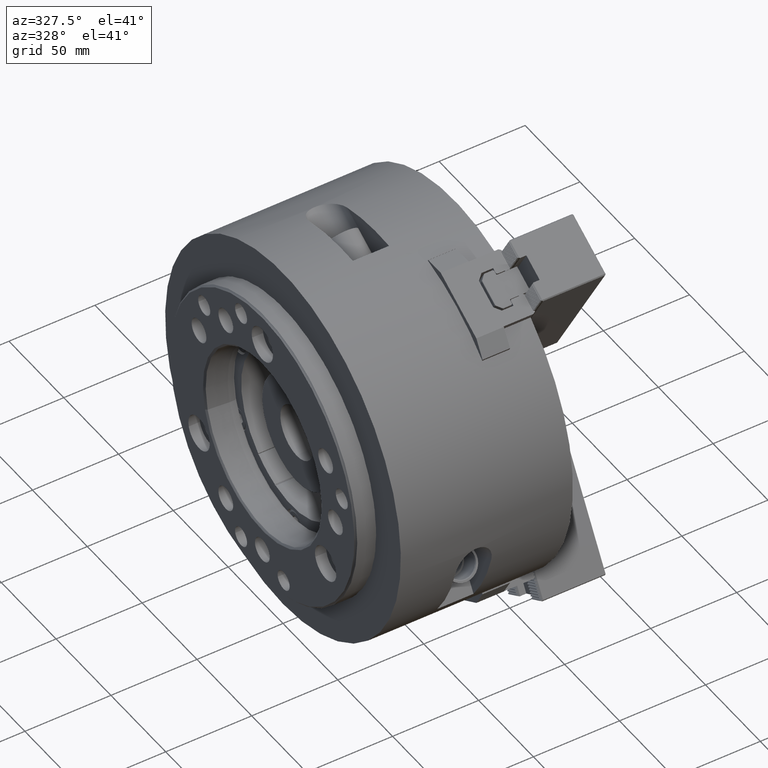
[diagram: clean part render]
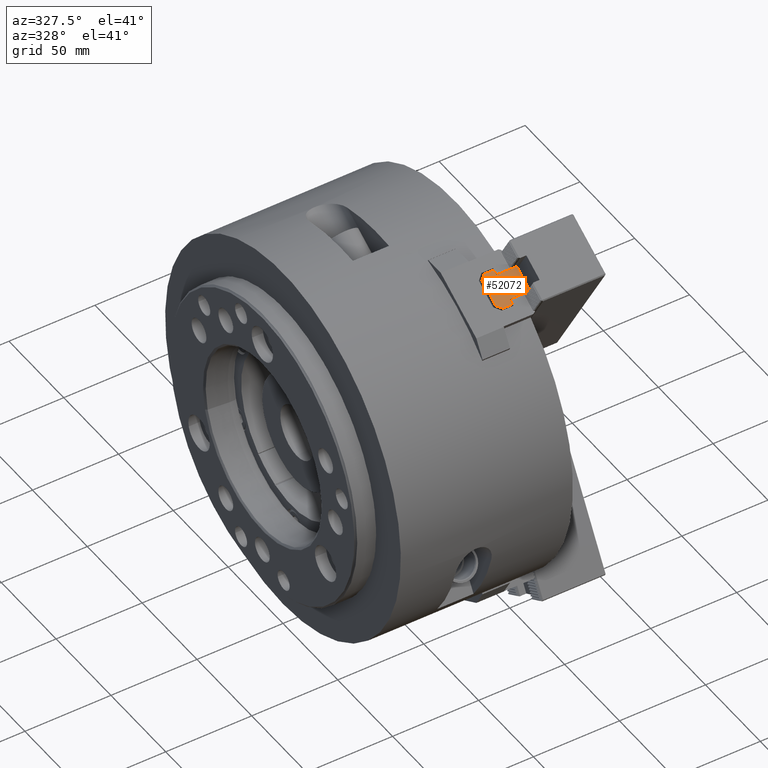
[diagram: same view with one face highlighted and labeled with its STEP entity id]
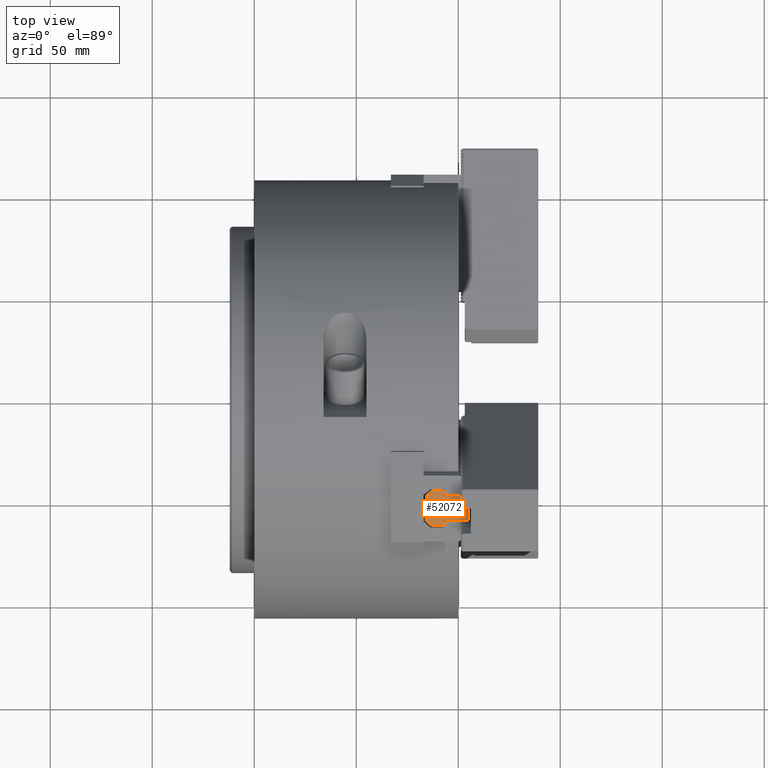
[diagram: same view with one face highlighted and labeled with its STEP entity id]
A machine part, auxiliary view. The second image highlights one B-rep face of the part: STEP entity #52072.
A second angle (top view) of the same face is appended — the face is thin or edge-on in the first view.
In plain terms, the highlighted planar face has unit normal (0, 0.5, -0.866).
Its self-contained STEP definition (entity closure, byte-faithful):
#2679=LINE('',#78597,#9179);
#2683=LINE('',#78609,#9183);
#2686=LINE('',#78616,#9186);
#2695=LINE('',#78633,#9195);
#2700=LINE('',#78647,#9200);
#2701=LINE('',#78648,#9201);
#2702=LINE('',#78650,#9202);
#2703=LINE('',#78652,#9203);
#2704=LINE('',#78654,#9204);
#2705=LINE('',#78656,#9205);
#2706=LINE('',#78660,#9206);
#2707=LINE('',#78662,#9207);
#9179=VECTOR('',#64268,1000.);
#9183=VECTOR('',#64280,1000.);
#9186=VECTOR('',#64285,1000.);
#9195=VECTOR('',#64298,1000.);
#9200=VECTOR('',#64311,1000.);
#9201=VECTOR('',#64312,1000.);
#9202=VECTOR('',#64313,1000.);
#9203=VECTOR('',#64314,1000.);
#9204=VECTOR('',#64315,1000.);
#9205=VECTOR('',#64316,1000.);
#9206=VECTOR('',#64319,1000.);
#9207=VECTOR('',#64320,1000.);
#14138=PLANE('',#55950);
#22349=ORIENTED_EDGE('',*,*,#33848,.T.);
#22350=ORIENTED_EDGE('',*,*,#33864,.T.);
#22351=ORIENTED_EDGE('',*,*,#33857,.T.);
#22352=ORIENTED_EDGE('',*,*,#33865,.T.);
#22353=ORIENTED_EDGE('',*,*,#33866,.F.);
#22354=ORIENTED_EDGE('',*,*,#33867,.F.);
#22355=ORIENTED_EDGE('',*,*,#33868,.F.);
#22356=ORIENTED_EDGE('',*,*,#33869,.F.);
#22357=ORIENTED_EDGE('',*,*,#33870,.F.);
#22358=ORIENTED_EDGE('',*,*,#33871,.F.);
#22359=ORIENTED_EDGE('',*,*,#33872,.T.);
#22360=ORIENTED_EDGE('',*,*,#33839,.T.);
#22361=ORIENTED_EDGE('',*,*,#33842,.T.);
#22362=ORIENTED_EDGE('',*,*,#33845,.T.);
#33839=EDGE_CURVE('',#44415,#44418,#2679,.T.);
#33842=EDGE_CURVE('',#44418,#44420,#38600,.T.);
#33845=EDGE_CURVE('',#44420,#44422,#2683,.T.);
#33848=EDGE_CURVE('',#44422,#44425,#2686,.T.);
#33857=EDGE_CURVE('',#44432,#44431,#2695,.T.);
#33864=EDGE_CURVE('',#44425,#44432,#2700,.T.);
#33865=EDGE_CURVE('',#44431,#44437,#2701,.T.);
#33866=EDGE_CURVE('',#44438,#44437,#2702,.T.);
#33867=EDGE_CURVE('',#44439,#44438,#2703,.T.);
#33868=EDGE_CURVE('',#44440,#44439,#2704,.T.);
#33869=EDGE_CURVE('',#44441,#44440,#2705,.T.);
#33870=EDGE_CURVE('',#44442,#44441,#38603,.T.);
#33871=EDGE_CURVE('',#44443,#44442,#2706,.T.);
#33872=EDGE_CURVE('',#44443,#44415,#2707,.T.);
#38600=CIRCLE('',#55942,0.399999999999876);
#38603=CIRCLE('',#55951,0.399999999999876);
#40554=EDGE_LOOP('',(#22349,#22350,#22351,#22352,#22353,#22354,#22355,#22356,
#22357,#22358,#22359,#22360,#22361,#22362));
#44415=VERTEX_POINT('',#78588);
#44418=VERTEX_POINT('',#78596);
#44420=VERTEX_POINT('',#78602);
#44422=VERTEX_POINT('',#78608);
#44425=VERTEX_POINT('',#78615);
#44431=VERTEX_POINT('',#78632);
#44432=VERTEX_POINT('',#78634);
#44437=VERTEX_POINT('',#78649);
#44438=VERTEX_POINT('',#78651);
#44439=VERTEX_POINT('',#78653);
#44440=VERTEX_POINT('',#78655);
#44441=VERTEX_POINT('',#78657);
#44442=VERTEX_POINT('',#78659);
#44443=VERTEX_POINT('',#78661);
#49021=FACE_BOUND('',#40554,.T.);
#52072=ADVANCED_FACE('',(#49021),#14138,.F.);
#55942=AXIS2_PLACEMENT_3D('',#78603,#64274,#64275);
#55950=AXIS2_PLACEMENT_3D('',#78646,#64309,#64310);
#55951=AXIS2_PLACEMENT_3D('',#78658,#64317,#64318);
#64268=DIRECTION('',(-1.,6.58909911726822E-17,3.80421814907197E-17));
#64274=DIRECTION('',(0.,0.500000000000004,-0.866025403784436));
#64275=DIRECTION('',(0.,0.866025403784436,0.500000000000004));
#64280=DIRECTION('',(4.33680868994178E-14,0.866025403784436,0.500000000000004));
#64285=DIRECTION('',(-0.707106781186582,0.612372435695763,0.35355339059326));
#64298=DIRECTION('',(-0.707106781186533,-0.612372435695805,-0.353553390593284));
#64309=DIRECTION('',(0.,0.500000000000004,-0.866025403784436));
#64310=DIRECTION('',(0.,0.866025403784436,0.500000000000004));
#64311=DIRECTION('',(-1.,-3.06594816068803E-16,-1.77012599589469E-16));
#64312=DIRECTION('',(-2.42861286636751E-14,-0.866025403784436,-0.500000000000004));
#64313=DIRECTION('',(-0.707106781186532,0.612372435695806,0.353553390593285));
#64314=DIRECTION('',(-1.,1.19256881987801E-15,6.88529929183731E-16));
#64315=DIRECTION('',(-0.707106781186583,-0.612372435695762,-0.353553390593259));
#64316=DIRECTION('',(4.23450522402293E-14,-0.866025403784436,-0.500000000000004));
#64317=DIRECTION('',(0.,-0.500000000000004,0.866025403784436));
#64318=DIRECTION('',(-1.02303465918852E-15,-0.866025403784436,-0.500000000000004));
#64319=DIRECTION('',(-1.,8.20083012636526E-16,4.73475148103543E-16));
#64320=DIRECTION('',(0.,0.866025403784436,0.500000000000004));
#78588=CARTESIAN_POINT('',(4.8000000000003,-48.8228032966212,98.5635758776881));
#78596=CARTESIAN_POINT('',(-6.59999999999969,-48.8228032966211,98.5635758776882));
#78597=CARTESIAN_POINT('',(-6.59999999999969,-48.8228032966212,98.5635758776881));
#78602=CARTESIAN_POINT('',(-6.99999999999969,-48.4763931351074,98.7635758776881));
#78603=CARTESIAN_POINT('',(-6.59999999999993,-48.4763931351074,98.7635758776881));
#78608=CARTESIAN_POINT('',(-6.9999999999996,-46.7443423275384,99.7635758776882));
#78609=CARTESIAN_POINT('',(-6.99999999999969,-48.4763931351074,98.7635758776881));
#78615=CARTESIAN_POINT('',(-7.39999999999954,-46.3979321660247,99.9635758776881));
#78616=CARTESIAN_POINT('',(-6.9999999999996,-46.7443423275384,99.7635758776882));
#78632=CARTESIAN_POINT('',(-15.2999999999994,-48.6495982158642,98.6635758776882));
#78633=CARTESIAN_POINT('',(-12.4999999999996,-46.2247270852679,100.063575877688));
#78634=CARTESIAN_POINT('',(-12.6999999999996,-46.3979321660248,99.9635758776881));
#78646=CARTESIAN_POINT('',(-6.59999999999993,-48.4763931351074,98.7635758776881));
#78647=CARTESIAN_POINT('',(-6.59999999999993,-46.3979321660247,99.9635758776881));
#78648=CARTESIAN_POINT('',(-15.2999999999994,-48.4763931351072,98.7635758776882));
#78649=CARTESIAN_POINT('',(-15.2999999999994,-61.1203640303602,91.463575877688));
#78650=CARTESIAN_POINT('',(-12.4999999999996,-63.5452351609566,90.0635758776881));
#78651=CARTESIAN_POINT('',(-12.6999999999996,-63.3720300801997,90.1635758776881));
#78652=CARTESIAN_POINT('',(-6.59999999999994,-63.3720300801997,90.1635758776881));
#78653=CARTESIAN_POINT('',(-7.39999999999955,-63.3720300801997,90.1635758776881));
#78654=CARTESIAN_POINT('',(-6.99999999999961,-63.025619918686,90.363575877688));
#78655=CARTESIAN_POINT('',(-6.99999999999961,-63.025619918686,90.363575877688));
#78656=CARTESIAN_POINT('',(-6.99999999999969,-61.293569111117,91.3635758776881));
#78657=CARTESIAN_POINT('',(-6.99999999999969,-61.293569111117,91.3635758776881));
#78658=CARTESIAN_POINT('',(-6.59999999999994,-61.293569111117,91.3635758776881));
#78659=CARTESIAN_POINT('',(-6.5999999999997,-60.9471589496034,91.563575877688));
#78660=CARTESIAN_POINT('',(-6.5999999999997,-60.9471589496032,91.5635758776881));
#78661=CARTESIAN_POINT('',(4.8000000000003,-60.9471589496033,91.5635758776881));
#78662=CARTESIAN_POINT('',(4.8000000000004,-48.4763931351074,98.7635758776881));